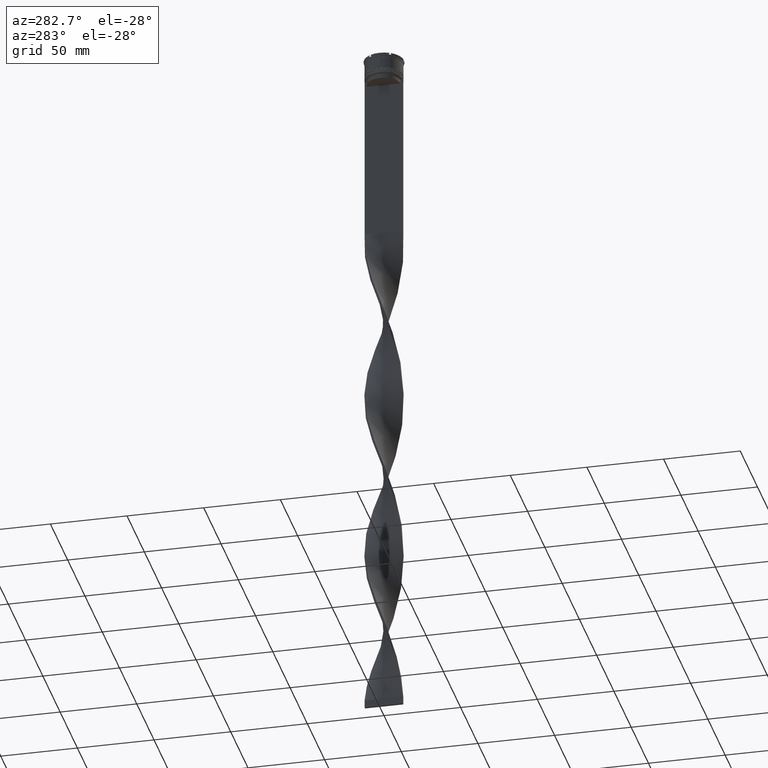
[diagram: clean part render]
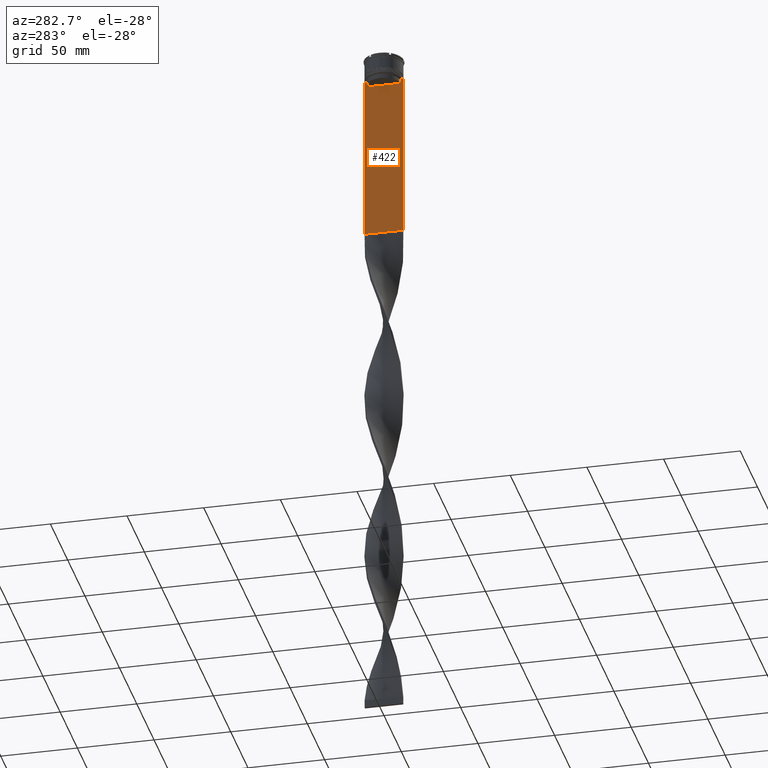
[diagram: same view with one face highlighted and labeled with its STEP entity id]
A machine part, auxiliary view. The second image highlights one B-rep face of the part: STEP entity #422.
In plain terms, the highlighted planar face has unit normal (-1, 0, 0).
Its self-contained STEP definition (entity closure, byte-faithful):
#15 = VECTOR ( 'NONE', #2689, 1000.000000000000000 ) ;
#82 = VECTOR ( 'NONE', #1506, 1000.000000000000000 ) ;
#111 = VERTEX_POINT ( 'NONE', #1210 ) ;
#180 = DIRECTION ( 'NONE',  ( 0.000000000000000000, 0.000000000000000000, -1.000000000000000000 ) ) ;
#251 = LINE ( 'NONE', #3865, #378 ) ;
#281 = EDGE_CURVE ( 'NONE', #1976, #2659, #1030, .T. ) ;
#370 = CARTESIAN_POINT ( 'NONE',  ( -0.7499999999999997780, -12.50000000000000000, -14.00000000000000178 ) ) ;
#378 = VECTOR ( 'NONE', #3131, 1000.000000000000000 ) ;
#416 = DIRECTION ( 'NONE',  ( 0.000000000000000000, -1.000000000000000000, 0.000000000000000000 ) ) ;
#422 = ADVANCED_FACE ( 'NONE', ( #4351 ), #2565, .T. ) ;
#442 = CARTESIAN_POINT ( 'NONE',  ( -0.7499999999999997780, 12.37729776647553059, -14.00000000000000178 ) ) ;
#471 = LINE ( 'NONE', #2556, #1587 ) ;
#472 = CARTESIAN_POINT ( 'NONE',  ( -0.7499999999999997780, 10.87416663473574374, -14.50000000000000000 ) ) ;
#496 = CARTESIAN_POINT ( 'NONE',  ( -0.7499999999999997780, -10.87416663473574374, -14.50000000000000000 ) ) ;
#497 = LINE ( 'NONE', #1177, #1788 ) ;
#528 = VECTOR ( 'NONE', #3425, 1000.000000000000000 ) ;
#585 = CARTESIAN_POINT ( 'NONE',  ( -0.7499999999999997780, -12.37729776647553059, -14.00000000000000178 ) ) ;
#588 = CARTESIAN_POINT ( 'NONE',  ( -0.7499999999999997780, 11.04122051153452055, -14.33334204648729582 ) ) ;
#676 = ORIENTED_EDGE ( 'NONE', *, *, #1608, .F. ) ;
#720 = LINE ( 'NONE', #3585, #3689 ) ;
#774 = EDGE_CURVE ( 'NONE', #4237, #2359, #497, .T. ) ;
#775 = VERTEX_POINT ( 'NONE', #3032 ) ;
#779 = CARTESIAN_POINT ( 'NONE',  ( -0.7499999999999997780, -12.50000000000000000, 11.04495957273638673 ) ) ;
#780 = ORIENTED_EDGE ( 'NONE', *, *, #281, .F. ) ;
#796 = CARTESIAN_POINT ( 'NONE',  ( -0.7499999999999997780, -10.87416663473574374, 0.000000000000000000 ) ) ;
#973 = VERTEX_POINT ( 'NONE', #585 ) ;
#1030 = LINE ( 'NONE', #1387, #4046 ) ;
#1098 = DIRECTION ( 'NONE',  ( 0.000000000000000000, -1.000000000000000000, 0.000000000000000000 ) ) ;
#1177 = CARTESIAN_POINT ( 'NONE',  ( -0.7499999999999997780, 10.90000000000000213, -17.00000000000000000 ) ) ;
#1210 = CARTESIAN_POINT ( 'NONE',  ( -0.7499999999999997780, -12.50000000000000000, -14.00000000000000178 ) ) ;
#1364 = VECTOR ( 'NONE', #180, 1000.000000000000000 ) ;
#1387 = CARTESIAN_POINT ( 'NONE',  ( -0.7499999999999997780, -12.50000000000000000, -14.00000000000000178 ) ) ;
#1441 = ORIENTED_EDGE ( 'NONE', *, *, #1672, .F. ) ;
#1506 = DIRECTION ( 'NONE',  ( -0.000000000000000000, -0.000000000000000000, 1.000000000000000000 ) ) ;
#1551 = DIRECTION ( 'NONE',  ( 0.000000000000000000, -1.000000000000000000, 0.000000000000000000 ) ) ;
#1587 = VECTOR ( 'NONE', #1551, 1000.000000000000000 ) ;
#1608 = EDGE_CURVE ( 'NONE', #2659, #3907, #3884, .T. ) ;
#1672 = EDGE_CURVE ( 'NONE', #973, #111, #4375, .T. ) ;
#1683 = CARTESIAN_POINT ( 'NONE',  ( -0.7499999999999997780, 10.87416663473574019, -17.00000000000000000 ) ) ;
#1703 = CARTESIAN_POINT ( 'NONE',  ( -0.7499999999999997780, -11.37530219378809093, -14.00000000000000178 ) ) ;
#1771 = ORIENTED_EDGE ( 'NONE', *, *, #774, .F. ) ;
#1774 = CARTESIAN_POINT ( 'NONE',  ( -0.7499999999999997780, 12.50000000000000000, -14.00000000000000178 ) ) ;
#1788 = VECTOR ( 'NONE', #4448, 1000.000000000000000 ) ;
#1895 = ORIENTED_EDGE ( 'NONE', *, *, #2727, .F. ) ;
#1930 = CARTESIAN_POINT ( 'NONE',  ( -0.7499999999999997780, -11.04122051801870619, -14.33334204001847745 ) ) ;
#1976 = VERTEX_POINT ( 'NONE', #442 ) ;
#2004 = VERTEX_POINT ( 'NONE', #4094 ) ;
#2045 = EDGE_CURVE ( 'NONE', #2004, #4378, #4161, .T. ) ;
#2053 = CARTESIAN_POINT ( 'NONE',  ( -0.7499999999999997780, 11.37530219378809093, -14.00000000000000178 ) ) ;
#2150 = EDGE_CURVE ( 'NONE', #3907, #4237, #3828, .T. ) ;
#2213 = DIRECTION ( 'NONE',  ( -1.000000000000000000, 0.000000000000000000, 0.000000000000000000 ) ) ;
#2252 = ORIENTED_EDGE ( 'NONE', *, *, #4249, .F. ) ;
#2359 = VERTEX_POINT ( 'NONE', #2849 ) ;
#2369 = CARTESIAN_POINT ( 'NONE',  ( -0.7499999999999997780, -12.50000000000000000, 11.04495957273638673 ) ) ;
#2425 = ORIENTED_EDGE ( 'NONE', *, *, #2045, .F. ) ;
#2433 = VERTEX_POINT ( 'NONE', #1774 ) ;
#2467 = AXIS2_PLACEMENT_3D ( 'NONE', #779, #2213, #3647 ) ;
#2480 = ORIENTED_EDGE ( 'NONE', *, *, #3733, .F. ) ;
#2556 = CARTESIAN_POINT ( 'NONE',  ( -0.7499999999999997780, -12.50000000000000000, -14.00000000000000178 ) ) ;
#2565 = PLANE ( 'NONE',  #2467 ) ;
#2599 = ORIENTED_EDGE ( 'NONE', *, *, #3126, .F. ) ;
#2659 = VERTEX_POINT ( 'NONE', #4462 ) ;
#2689 = DIRECTION ( 'NONE',  ( 0.000000000000000000, 0.000000000000000000, -1.000000000000000000 ) ) ;
#2727 = EDGE_CURVE ( 'NONE', #2359, #2004, #2930, .T. ) ;
#2771 = VECTOR ( 'NONE', #416, 1000.000000000000000 ) ;
#2849 = CARTESIAN_POINT ( 'NONE',  ( -0.7499999999999997780, -10.87416663473574019, -17.00000000000000000 ) ) ;
#2876 = DIRECTION ( 'NONE',  ( 0.000000000000000000, -1.000000000000000000, 0.000000000000000000 ) ) ;
#2886 = EDGE_LOOP ( 'NONE', ( #676, #780, #2480, #4554, #3504, #2252, #1441, #2599, #2425, #1895, #1771, #3843 ) ) ;
#2930 = LINE ( 'NONE', #796, #82 ) ;
#3005 = CARTESIAN_POINT ( 'NONE',  ( -0.7499999999999997780, -11.37530219378809093, -14.00000000000000178 ) ) ;
#3032 = CARTESIAN_POINT ( 'NONE',  ( -0.7499999999999997780, 12.50000000000000000, -123.0000000000000000 ) ) ;
#3111 = LINE ( 'NONE', #2369, #15 ) ;
#3126 = EDGE_CURVE ( 'NONE', #4378, #973, #471, .T. ) ;
#3131 = DIRECTION ( 'NONE',  ( 0.000000000000000000, 1.000000000000000000, 0.000000000000000000 ) ) ;
#3354 = CARTESIAN_POINT ( 'NONE',  ( -0.7499999999999997780, -11.20826532207830439, -14.16667499063191471 ) ) ;
#3393 = EDGE_CURVE ( 'NONE', #2433, #775, #3773, .T. ) ;
#3413 = CARTESIAN_POINT ( 'NONE',  ( -0.7499999999999997780, 12.50000000000000000, 11.04495957273638673 ) ) ;
#3425 = DIRECTION ( 'NONE',  ( 0.000000000000000000, 0.000000000000000000, -1.000000000000000000 ) ) ;
#3504 = ORIENTED_EDGE ( 'NONE', *, *, #4370, .F. ) ;
#3585 = CARTESIAN_POINT ( 'NONE',  ( -0.7499999999999997780, -12.50000000000000000, -14.00000000000000178 ) ) ;
#3647 = DIRECTION ( 'NONE',  ( 0.000000000000000000, 0.000000000000000000, 1.000000000000000000 ) ) ;
#3689 = VECTOR ( 'NONE', #2876, 1000.000000000000000 ) ;
#3733 = EDGE_CURVE ( 'NONE', #2433, #1976, #720, .T. ) ;
#3773 = LINE ( 'NONE', #3413, #1364 ) ;
#3828 = LINE ( 'NONE', #4537, #528 ) ;
#3843 = ORIENTED_EDGE ( 'NONE', *, *, #2150, .F. ) ;
#3865 = CARTESIAN_POINT ( 'NONE',  ( -0.7499999999999997780, -12.50000000000000000, -123.0000000000000000 ) ) ;
#3884 = B_SPLINE_CURVE_WITH_KNOTS ( 'NONE', 3,
 ( #2053, #4608, #588, #3903 ),
 .UNSPECIFIED., .F., .F.,
 ( 4, 4 ),
 ( 0.01936090553552769281, 0.02006881572333104116 ),
 .UNSPECIFIED. ) ;
#3903 = CARTESIAN_POINT ( 'NONE',  ( -0.7499999999999997780, 10.87416663473574374, -14.50000000000000000 ) ) ;
#3907 = VERTEX_POINT ( 'NONE', #472 ) ;
#3940 = CARTESIAN_POINT ( 'NONE',  ( -0.7499999999999997780, -12.50000000000000000, -123.0000000000000000 ) ) ;
#4046 = VECTOR ( 'NONE', #1098, 1000.000000000000000 ) ;
#4094 = CARTESIAN_POINT ( 'NONE',  ( -0.7499999999999997780, -10.87416663473574374, -14.50000000000000000 ) ) ;
#4161 = B_SPLINE_CURVE_WITH_KNOTS ( 'NONE', 3,
 ( #496, #1930, #3354, #3005 ),
 .UNSPECIFIED., .F., .F.,
 ( 4, 4 ),
 ( 0.05009718908159448147, 0.05081156920313960323 ),
 .UNSPECIFIED. ) ;
#4237 = VERTEX_POINT ( 'NONE', #1683 ) ;
#4249 = EDGE_CURVE ( 'NONE', #111, #4472, #3111, .T. ) ;
#4351 = FACE_OUTER_BOUND ( 'NONE', #2886, .T. ) ;
#4370 = EDGE_CURVE ( 'NONE', #4472, #775, #251, .T. ) ;
#4375 = LINE ( 'NONE', #370, #2771 ) ;
#4378 = VERTEX_POINT ( 'NONE', #1703 ) ;
#4448 = DIRECTION ( 'NONE',  ( 0.000000000000000000, -1.000000000000000000, 0.000000000000000000 ) ) ;
#4462 = CARTESIAN_POINT ( 'NONE',  ( -0.7499999999999997780, 11.37530219378809093, -14.00000000000000178 ) ) ;
#4472 = VERTEX_POINT ( 'NONE', #3940 ) ;
#4537 = CARTESIAN_POINT ( 'NONE',  ( -0.7499999999999997780, 10.87416663473574374, 0.000000000000000000 ) ) ;
#4554 = ORIENTED_EDGE ( 'NONE', *, *, #3393, .T. ) ;
#4608 = CARTESIAN_POINT ( 'NONE',  ( -0.7499999999999997780, 11.20826531587977648, -14.16667499681701514 ) ) ;